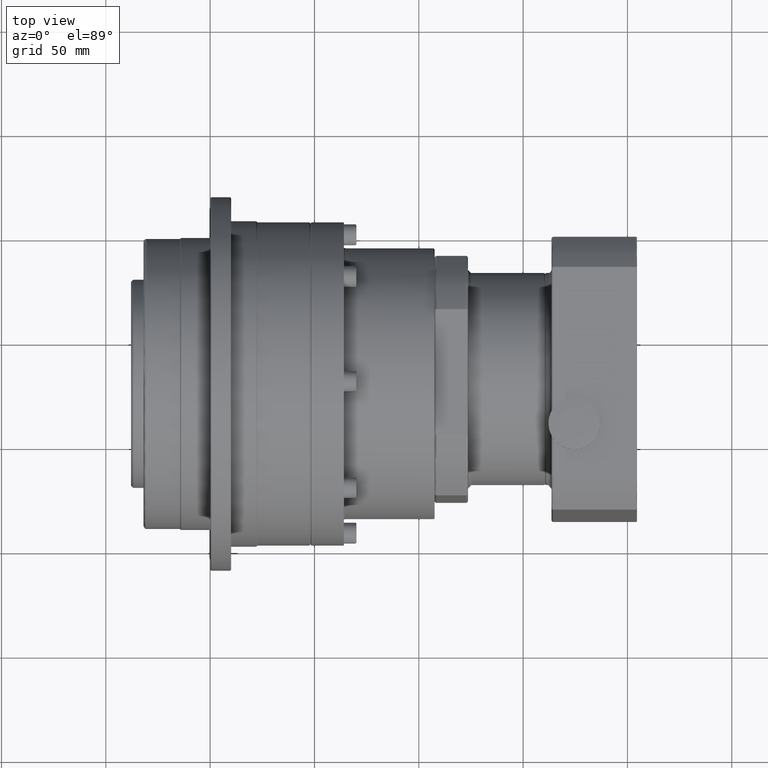
[diagram: clean part render]
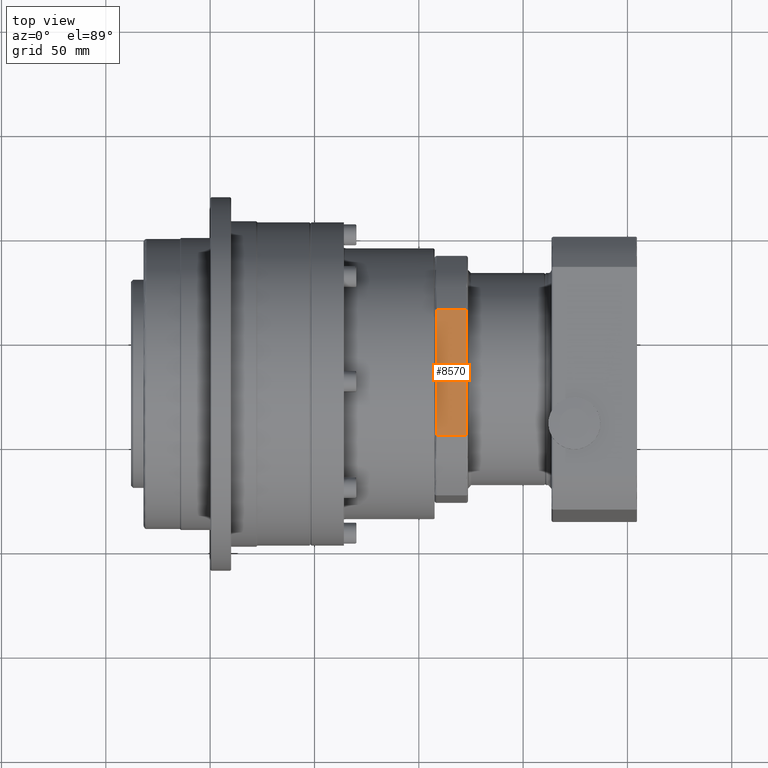
[diagram: same view with one face highlighted and labeled with its STEP entity id]
A machine part, top view. The second image highlights one B-rep face of the part: STEP entity #8570.
In plain terms, the highlighted planar face has unit normal (-0, 0.0419, 0.9991).
Its self-contained STEP definition (entity closure, byte-faithful):
#474=PLANE('',#9552);
#1461=FACE_OUTER_BOUND('',#2322,.T.);
#2322=EDGE_LOOP('',(#7157,#7158,#7159,#7160));
#3345=LINE('',#14751,#3711);
#3348=LINE('',#14793,#3714);
#3354=LINE('',#14866,#3720);
#3357=LINE('',#14955,#3723);
#3711=VECTOR('',#11651,60.6217782649106);
#3714=VECTOR('',#11668,14.);
#3720=VECTOR('',#11688,60.6217782649106);
#3723=VECTOR('',#11739,14.);
#4358=VERTEX_POINT('',#14719);
#4359=VERTEX_POINT('',#14736);
#4363=VERTEX_POINT('',#14791);
#4367=VERTEX_POINT('',#14851);
#5312=EDGE_CURVE('',#4359,#4358,#3345,.T.);
#5320=EDGE_CURVE('',#4359,#4363,#3348,.T.);
#5331=EDGE_CURVE('',#4367,#4363,#3354,.T.);
#5344=EDGE_CURVE('',#4367,#4358,#3357,.T.);
#7157=ORIENTED_EDGE('',*,*,#5312,.F.);
#7158=ORIENTED_EDGE('',*,*,#5320,.T.);
#7159=ORIENTED_EDGE('',*,*,#5331,.F.);
#7160=ORIENTED_EDGE('',*,*,#5344,.T.);
#8570=ADVANCED_FACE('',(#1461),#474,.T.);
#9552=AXIS2_PLACEMENT_3D('',#14958,#11743,#11744);
#11651=DIRECTION('',(1.45026968951724E-16,0.999121234364557,-0.0419137094736808));
#11668=DIRECTION('',(1.,-7.10607305259875E-17,1.76621647387803E-15));
#11688=DIRECTION('',(-1.45026968951724E-16,-0.999121234364557,0.0419137094736808));
#11739=DIRECTION('',(-1.,7.10607305259875E-17,-1.76621647387803E-15));
#11743=DIRECTION('center_axis',(-1.76168596472177E-15,0.0419137094736808,
0.999121234364557));
#11744=DIRECTION('ref_axis',(0.,0.999121234364557,-0.0419137094736804));
#14719=CARTESIAN_POINT('',(-41.4298081002763,14.6481563028794,49.6818076455594));
#14736=CARTESIAN_POINT('',(-41.4298081002763,-45.9203496265326,52.2226912475328));
#14751=CARTESIAN_POINT('',(-41.4298081002763,-44.3608321498077,52.1572685939144));
#14791=CARTESIAN_POINT('',(-27.4298081002763,-45.9203496265326,52.2226912475328));
#14793=CARTESIAN_POINT('',(10.5701918997237,-45.9203496265326,52.2226912475329));
#14851=CARTESIAN_POINT('',(-27.4298081002763,14.6481563028794,49.6818076455595));
#14866=CARTESIAN_POINT('',(-27.4298081002763,-44.3608321498077,52.1572685939144));
#14955=CARTESIAN_POINT('',(10.5701918997237,14.6481563028793,49.6818076455595));
#14958=CARTESIAN_POINT('Origin',(-26.4298081002763,-73.0855676377887,53.3622877412828));